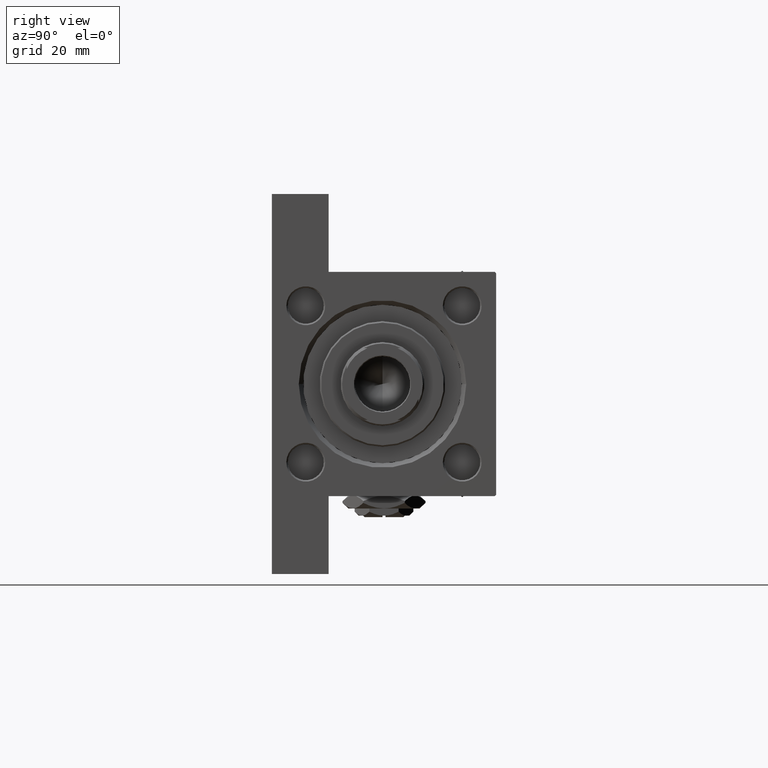
[diagram: clean part render]
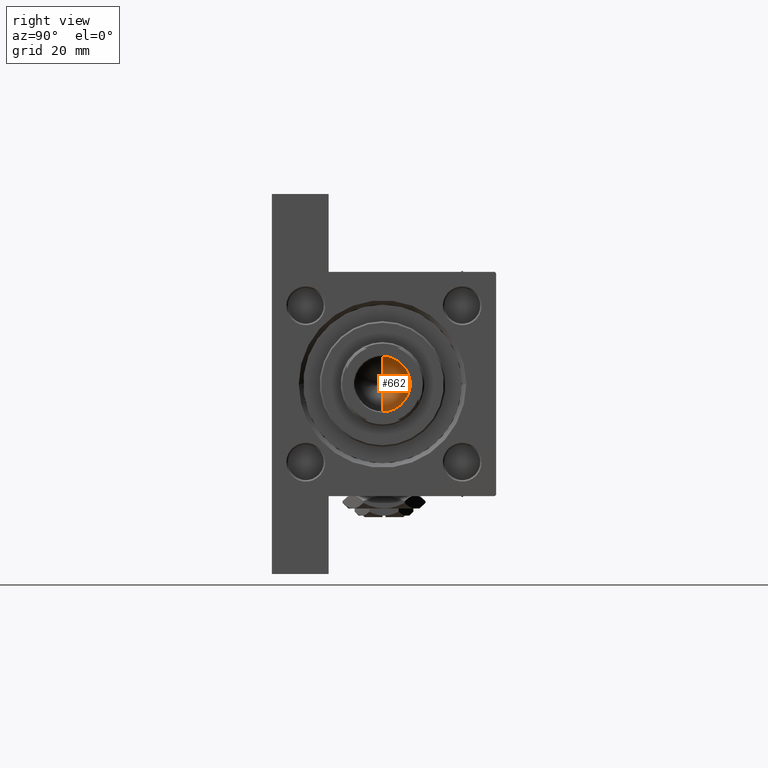
[diagram: same view with one face highlighted and labeled with its STEP entity id]
A machine part, right view. The second image highlights one B-rep face of the part: STEP entity #662.
In plain terms, the highlighted conical surface has half-angle 59 deg.
Its self-contained STEP definition (entity closure, byte-faithful):
#662 = ADVANCED_FACE ( 'NONE', ( #47218 ), #42395, .F. ) ;
#1245 = CARTESIAN_POINT ( 'NONE',  ( 0.000000000000000000, 0.000000000000000000, 107.0000000000000142 ) ) ;
#1788 = AXIS2_PLACEMENT_3D ( 'NONE', #46718, #3755, #35420 ) ;
#2737 = CARTESIAN_POINT ( 'NONE',  ( 9.249999999999992895, 0.000000000000000000, 107.0000000000000142 ) ) ;
#3755 = DIRECTION ( 'NONE',  ( -0.000000000000000000, -0.000000000000000000, 1.000000000000000000 ) ) ;
#6639 = CARTESIAN_POINT ( 'NONE',  ( 9.249999999999992895, 0.000000000000000000, 107.0000000000000142 ) ) ;
#8281 = VERTEX_POINT ( 'NONE', #38859 ) ;
#8849 = VECTOR ( 'NONE', #49093, 1000.000000000000000 ) ;
#9941 = DIRECTION ( 'NONE',  ( -0.8571673007021117785, 1.049727191138617956E-16, 0.5150380749100550437 ) ) ;
#12331 = EDGE_CURVE ( 'NONE', #8281, #40121, #37077, .T. ) ;
#12759 = CARTESIAN_POINT ( 'NONE',  ( -9.769621978240258809E-15, 0.000000000000000000, 101.4420392739950785 ) ) ;
#14606 = EDGE_LOOP ( 'NONE', ( #43353, #22845, #37244 ) ) ;
#22845 = ORIENTED_EDGE ( 'NONE', *, *, #32505, .T. ) ;
#30519 = VERTEX_POINT ( 'NONE', #12759 ) ;
#31794 = EDGE_CURVE ( 'NONE', #30519, #40121, #37057, .T. ) ;
#32167 = DIRECTION ( 'NONE',  ( -0.000000000000000000, -0.000000000000000000, 1.000000000000000000 ) ) ;
#32505 = EDGE_CURVE ( 'NONE', #30519, #8281, #35827, .T. ) ;
#35420 = DIRECTION ( 'NONE',  ( 1.000000000000000000, 0.000000000000000000, 0.000000000000000000 ) ) ;
#35827 = LINE ( 'NONE', #44338, #40123 ) ;
#37057 = LINE ( 'NONE', #6639, #8849 ) ;
#37077 = CIRCLE ( 'NONE', #1788, 9.249999999999992895 ) ;
#37244 = ORIENTED_EDGE ( 'NONE', *, *, #12331, .T. ) ;
#37609 = AXIS2_PLACEMENT_3D ( 'NONE', #1245, #32167, #43710 ) ;
#38859 = CARTESIAN_POINT ( 'NONE',  ( -9.249999999999992895, 1.132798289211300712E-15, 107.0000000000000142 ) ) ;
#40121 = VERTEX_POINT ( 'NONE', #2737 ) ;
#40123 = VECTOR ( 'NONE', #9941, 1000.000000000000000 ) ;
#42395 = CONICAL_SURFACE ( 'NONE', #37609, 9.249999999999992895, 1.029744258676653423 ) ;
#43353 = ORIENTED_EDGE ( 'NONE', *, *, #31794, .F. ) ;
#43710 = DIRECTION ( 'NONE',  ( 1.000000000000000000, 0.000000000000000000, 0.000000000000000000 ) ) ;
#44338 = CARTESIAN_POINT ( 'NONE',  ( -9.249999999999992895, 1.132798289211300712E-15, 107.0000000000000142 ) ) ;
#46718 = CARTESIAN_POINT ( 'NONE',  ( 0.000000000000000000, 0.000000000000000000, 107.0000000000000142 ) ) ;
#47218 = FACE_OUTER_BOUND ( 'NONE', #14606, .T. ) ;
#49093 = DIRECTION ( 'NONE',  ( 0.8571673007021117785, 0.000000000000000000, 0.5150380749100550437 ) ) ;